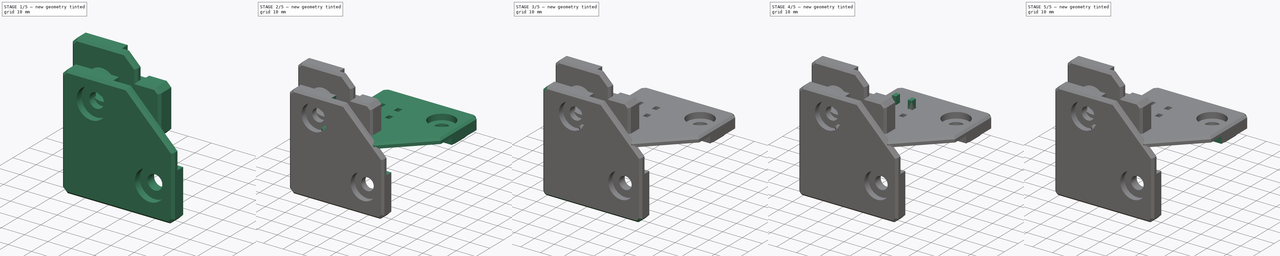
[diagram: build sequence overview — one tinted view per stage of 5, left to right]
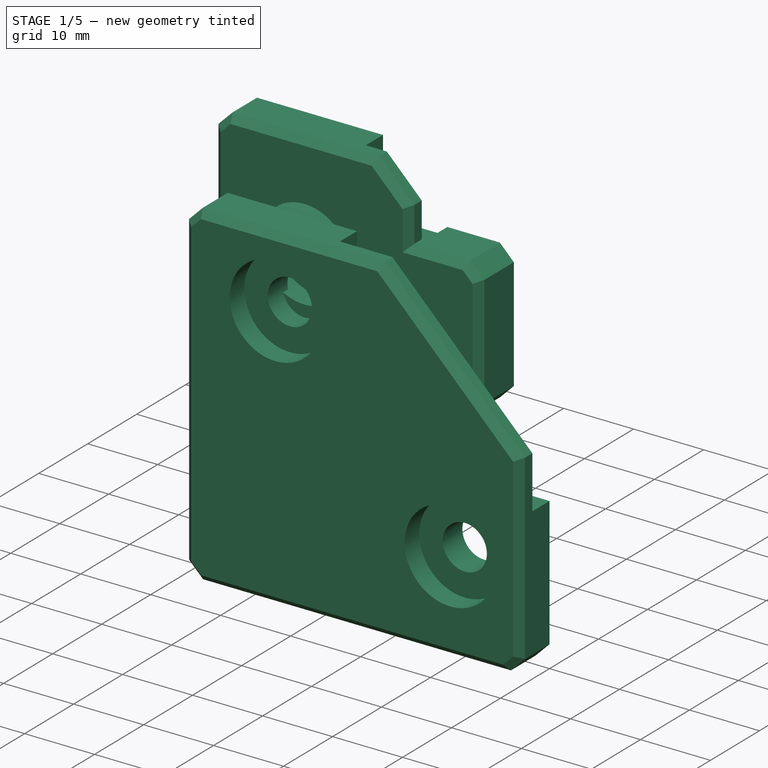
[diagram: stage 1 of 5 — iso view after this stage's code; geometry added in this stage tinted green]
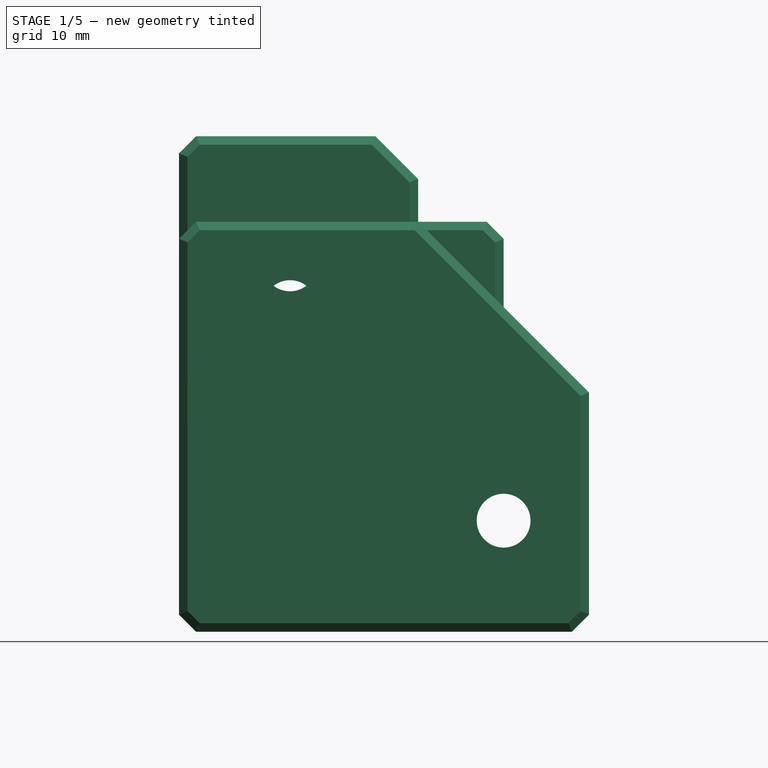
[diagram: stage 1 of 5 — front view after this stage's code; geometry added in this stage tinted green]
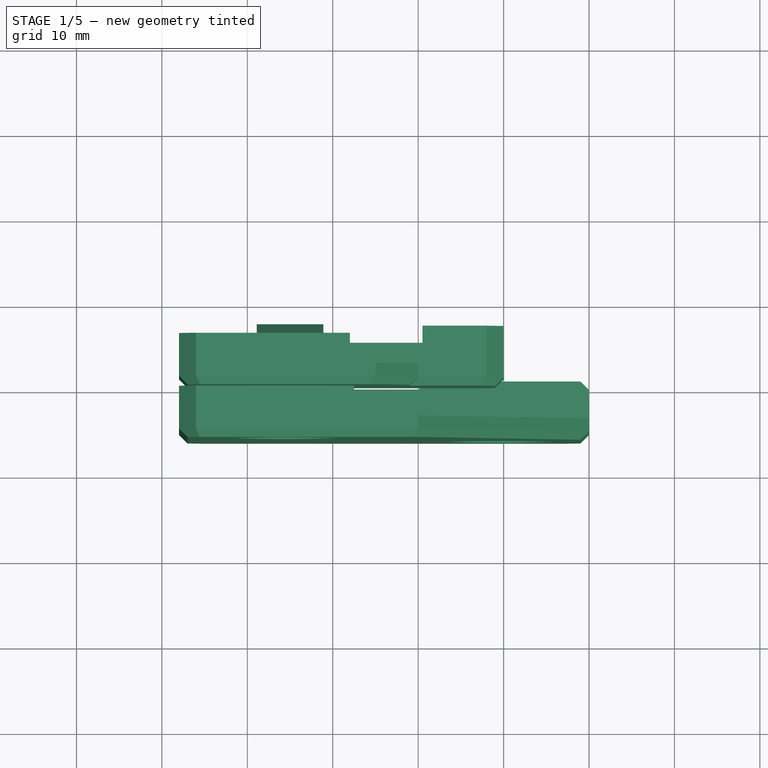
[diagram: stage 1 of 5 — top view after this stage's code; geometry added in this stage tinted green]
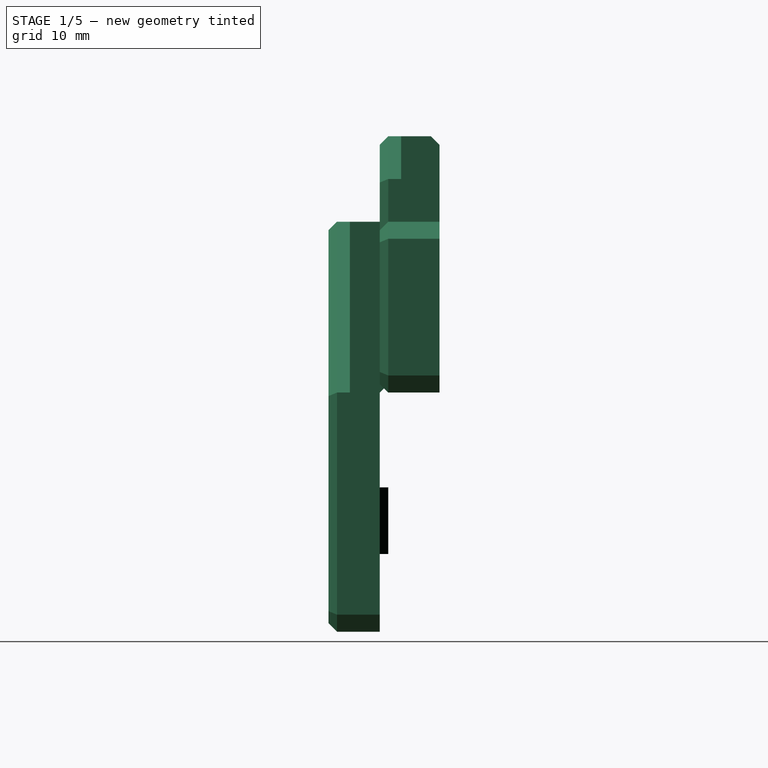
[diagram: stage 1 of 5 — right view after this stage's code; geometry added in this stage tinted green]
FCSTD DOCUMENT  (FreeCAD 0.19R24291 (Git))
Label: panel-mount-wider
License: Other
LicenseURL: GPL3
objects: Sketcher::SketchObject×8, PartDesign::Pocket×8, Part::Feature×6, Part::Box×6, Part::Chamfer×5, PartDesign::FeatureBase×5, PartDesign::Body×5, Part::MultiFuse×3, Part::Cut×1
note: 55 computed .brp shape members not serialized (recipe doc carries the construction recipe); baked Part::Feature solids carry a one-line shape summary decoded from their .brp

FEATURE [Part::Feature] Cut002008006005  label="back-corner-narrow"
  Placement = pos=(-155,57.5,1.1e-14) rot=(0.57735,-0.57735,0.57735;4.18879rad)
  shape: bbox 48 x 48 x 7 mm, 37 faces (baked)
FEATURE [PartDesign::FeatureBase] BaseFeature001
  BaseFeature = -> Cut002008006005
FEATURE [Part::Feature] Cut008004003004014002002005003004003002003001003001002001002002003026  label="side-clip-narrow"
  Placement = pos=(145,-3,395) rot=(0,1,0;1.5708rad)
  shape: bbox 30 x 7 x 28 mm, 29 faces (baked)
FEATURE [PartDesign::FeatureBase] BaseFeature002
  BaseFeature = -> Cut008004003004014002002005003004003002003001003001002001002002003026
FEATURE [Sketcher::SketchObject] Sketch002
  FullyConstrained = false
  MapMode = 5
  Placement = pos=(0,6,0) rot=(0,0.707107,0.707107;3.14159rad)
  Support = -> [BaseFeature002]
  sketch-geometry (4):
    g0: LineSegment StartX=8 StartY=30.5 StartZ=0 EndX=-0.5 EndY=30.5 EndZ=0
    g1: LineSegment StartX=-0.5 StartY=30.5 StartZ=0 EndX=-0.5 EndY=-0.5 EndZ=0
    g2: LineSegment StartX=-0.5 StartY=-0.5 StartZ=0 EndX=8 EndY=-0.5 EndZ=0
    g3: LineSegment StartX=8 StartY=-0.5 StartZ=0 EndX=8 EndY=30.5 EndZ=0
  constraints (8):
    c: Coincident(g0,g1)
    c: Coincident(g1,g2)
    c: Coincident(g2,g3)
    c: Coincident(g3,g0)
    c: Horizontal(g0)
    c: Horizontal(g2)
    c: Vertical(g1)
    c: Vertical(g3)
FEATURE [PartDesign::Pocket] Pocket002
  BaseFeature = -> BaseFeature002
  Length = 0
  Length2 = 100
  Profile = -> Sketch002
  Type = 3
  UpToFace = -> BaseFeature002 [Face11]
FEATURE [PartDesign::Body] Body001  label="back-corner-common"
  BaseFeature = -> Cut002008006005
  Group = -> [BaseFeature001,Sketch001,Pocket001,Sketch005,Pocket002001004]
  Origin = -> Origin001
  Tip = -> Pocket002001004
FEATURE [Sketcher::SketchObject] Sketch006
  FullyConstrained = true
  MapMode = 5
  Placement = pos=(0,7,0) rot=(0,0.707107,0.707107;3.14159rad)
  Support = -> [Pocket002]
  sketch-geometry (4):
    g0: LineSegment StartX=11 StartY=20 StartZ=0 EndX=19 EndY=20 EndZ=0
    g1: LineSegment StartX=19 StartY=20 StartZ=0 EndX=19 EndY=10 EndZ=0
    g2: LineSegment StartX=19 StartY=10 StartZ=0 EndX=11 EndY=10 EndZ=0
    g3: LineSegment StartX=11 StartY=10 StartZ=0 EndX=11 EndY=20 EndZ=0
  constraints (12):
    c: Coincident(g0,g1)
    c: Coincident(g1,g2)
    c: Coincident(g2,g3)
    c: Coincident(g3,g0)
    c: Horizontal(g0)
    c: Horizontal(g2)
    c: Vertical(g1)
    c: Vertical(g3)
    c: DistanceX(g0,g0) = 8
    c: DistanceY(g3,g3) = 10
    c: DistanceY(g-1,g2) = 10
    c: DistanceX(g-1,g2) = 11
FEATURE [PartDesign::Pocket] Pocket002001005
  BaseFeature = -> Pocket002
  Length = 1
  Length2 = 100
  Profile = -> Sketch006
  Type = 0
FEATURE [PartDesign::Body] Body002  label="side-clip"
  BaseFeature = -> Cut008004003004014002002005003004003002003001003001002001002002003026
  Group = -> [BaseFeature002,Sketch002,Pocket002,Sketch006,Pocket002001005]
  Origin = -> Origin002
  Tip = -> Pocket002001005
FEATURE [Part::Feature] Cut008004003004014002002005003004003002003001003001006  label="inner-clip-origin"
  Placement = pos=(10,15,7) rot=(0.57735,0.57735,-0.57735;4.18879rad)
  shape: bbox 20 x 35 x 7 mm, 27 faces (baked)
FEATURE [PartDesign::FeatureBase] BaseFeature004
  BaseFeature = -> Cut008004003004014002002005003004003002003001003001006
FEATURE [Sketcher::SketchObject] Sketch007
  FullyConstrained = true
  MapMode = 5
  Placement = pos=(0,6,0) rot=(0,0.707107,0.707107;3.14159rad)
  Support = -> [BaseFeature004]
  sketch-geometry (4):
    g0: LineSegment StartX=10.08 StartY=15 StartZ=0 EndX=20.08 EndY=15 EndZ=0
    g1: LineSegment StartX=20.08 StartY=15 StartZ=0 EndX=20.08 EndY=5 EndZ=0
    g2: LineSegment StartX=20.08 StartY=5 StartZ=0 EndX=10.08 EndY=5 EndZ=0
    g3: LineSegment StartX=10.08 StartY=5 StartZ=0 EndX=10.08 EndY=15 EndZ=0
  constraints (12):
    c: Coincident(g0,g1)
    c: Coincident(g1,g2)
    c: Coincident(g2,g3)
    c: Coincident(g3,g0)
    c: Horizontal(g0)
    c: Horizontal(g2)
    c: Vertical(g1)
    c: Vertical(g3)
    c: DistanceY(g1,g1) = 10
    c: DistanceX(g0,g0) = 10
    c: DistanceX(g-1,g2) = 10.08
    c: DistanceY(g-1,g2) = 5
FEATURE [PartDesign::Pocket] Pocket002001006
  BaseFeature = -> BaseFeature004
  Length = 1
  Length2 = 100
  Profile = -> Sketch007
  Type = 0
FEATURE [PartDesign::Body] Body004  label="inner-clip"
  BaseFeature = -> Cut008004003004014002002005003004003002003001003001006
  Group = -> [BaseFeature004,Sketch007,Pocket002001006]
  Origin = -> Origin004
  Tip = -> Pocket002001006
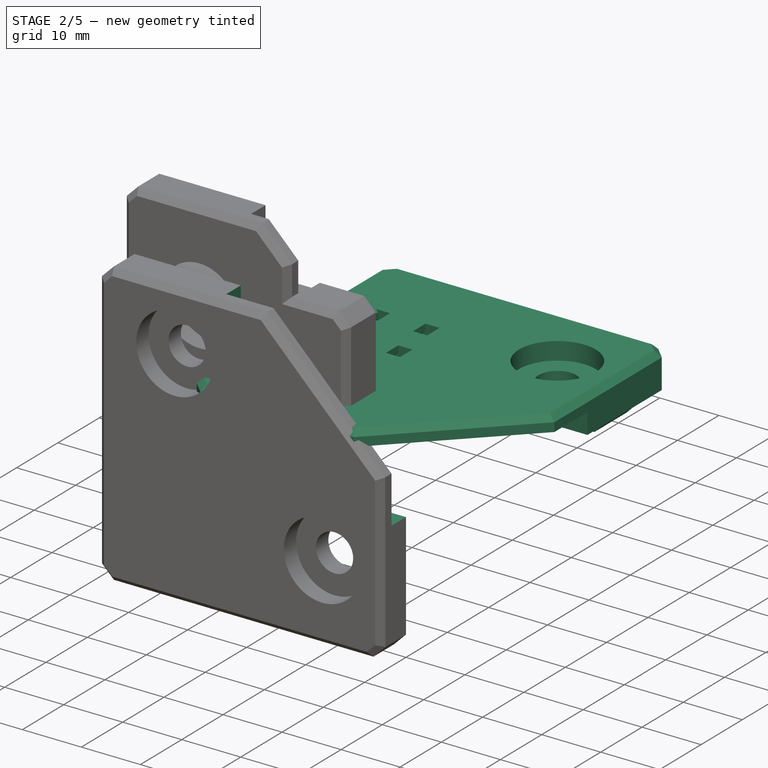
[diagram: stage 2 of 5 — iso view after this stage's code; geometry added in this stage tinted green]
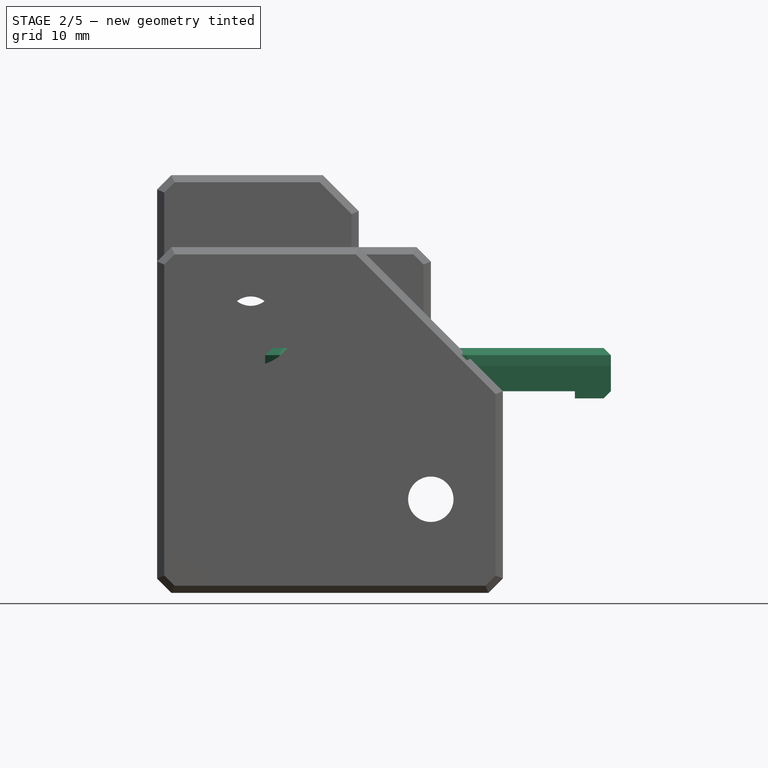
[diagram: stage 2 of 5 — front view after this stage's code; geometry added in this stage tinted green]
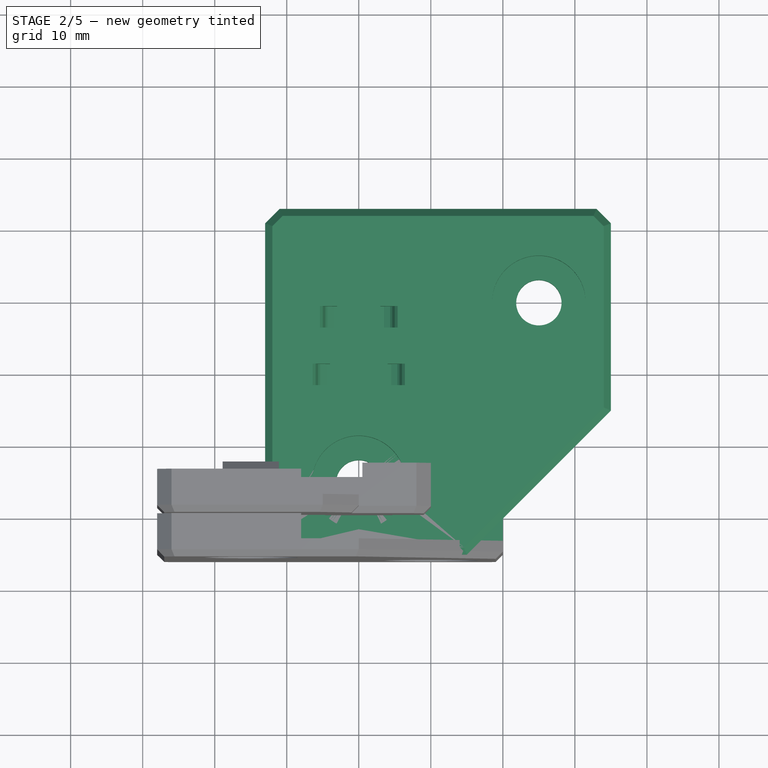
[diagram: stage 2 of 5 — top view after this stage's code; geometry added in this stage tinted green]
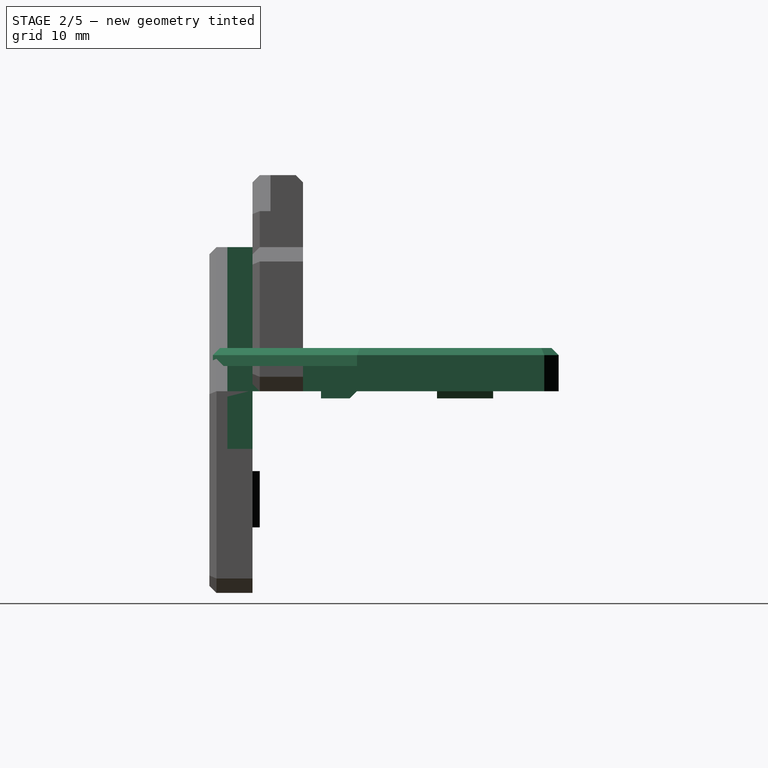
[diagram: stage 2 of 5 — right view after this stage's code; geometry added in this stage tinted green]
FEATURE [Part::Feature] Chamfer004001  label="corner-wire-mounter-narrow"
  shape: bbox 48 x 48 x 7 mm, 85 faces (baked)
FEATURE [PartDesign::FeatureBase] BaseFeature
  BaseFeature = -> Chamfer004001
FEATURE [Sketcher::SketchObject] Sketch
  FullyConstrained = false
  MapMode = 5
  Placement = pos=(0,0,1.07e-14) rot=(1,0,0;3.14159rad)
  Support = -> [BaseFeature]
  sketch-geometry (4):
    g0: LineSegment StartX=7 StartY=-22.5 StartZ=0 EndX=40.1708 EndY=-22.5 EndZ=0
    g1: LineSegment StartX=40.1708 StartY=-22.5 StartZ=0 EndX=40.1708 EndY=11.2568 EndZ=0
    g2: LineSegment StartX=40.1708 StartY=11.2568 StartZ=0 EndX=7 EndY=11.2568 EndZ=0
    g3: LineSegment StartX=7 StartY=11.2568 StartZ=0 EndX=7 EndY=-22.5 EndZ=0
  constraints (8):
    c: Coincident(g0,g1)
    c: Coincident(g1,g2)
    c: Coincident(g2,g3)
    c: Coincident(g3,g0)
    c: Horizontal(g0)
    c: Horizontal(g2)
    c: Vertical(g1)
    c: Vertical(g3)
FEATURE [PartDesign::Pocket] Pocket
  BaseFeature = -> BaseFeature
  Length = 0
  Length2 = 100
  Profile = -> Sketch
  Type = 3
  UpToFace = -> BaseFeature [Face71]
FEATURE [Sketcher::SketchObject] Sketch001
  FullyConstrained = false
  MapMode = 5
  Placement = pos=(0,0,0) rot=(0,0.707107,0.707107;3.14159rad)
  Support = -> [BaseFeature001]
  sketch-geometry (4):
    g0: LineSegment StartX=8 StartY=-8 StartZ=0 EndX=-26.2306 EndY=-8 EndZ=0
    g1: LineSegment StartX=-26.2306 StartY=-8 StartZ=0 EndX=-26.2306 EndY=25.143 EndZ=0
    g2: LineSegment StartX=-26.2306 StartY=25.143 StartZ=0 EndX=8 EndY=25.143 EndZ=0
    g3: LineSegment StartX=8 StartY=25.143 StartZ=0 EndX=8 EndY=-8 EndZ=0
  constraints (8):
    c: Coincident(g0,g1)
    c: Coincident(g1,g2)
    c: Coincident(g2,g3)
    c: Coincident(g3,g0)
    c: Horizontal(g0)
    c: Horizontal(g2)
    c: Vertical(g1)
    c: Vertical(g3)
FEATURE [PartDesign::Pocket] Pocket001
  BaseFeature = -> BaseFeature001
  Length = 0
  Length2 = 100
  Profile = -> Sketch001
  Type = 3
  UpToFace = -> BaseFeature001 [Face4]
FEATURE [PartDesign::Body] Body003  label="top-corner"
  BaseFeature = -> Cut002008004005
  Group = -> [BaseFeature003,Sketch003,Pocket002001002]
  Origin = -> Origin003
  Tip = -> Pocket002001002
FEATURE [Sketcher::SketchObject] Sketch004
  FullyConstrained = true
  MapMode = 5
  Placement = pos=(0,0,-1) rot=(1,0,0;3.14159rad)
  Support = -> [Pocket]
  sketch-geometry (8):
    g0: LineSegment StartX=-4 StartY=0.5 StartZ=0 EndX=4 EndY=0.5 EndZ=0
    g1: LineSegment StartX=4 StartY=0.5 StartZ=0 EndX=4 EndY=-9.5 EndZ=0
    g2: LineSegment StartX=4 StartY=-9.5 StartZ=0 EndX=-4 EndY=-9.5 EndZ=0
    g3: LineSegment StartX=-4 StartY=-9.5 StartZ=0 EndX=-4 EndY=0.5 EndZ=0
    g4: LineSegment StartX=20 StartY=-25.5 StartZ=0 EndX=30 EndY=-25.5 EndZ=0
    g5: LineSegment StartX=30 StartY=-25.5 StartZ=0 EndX=30 EndY=-33.5 EndZ=0
    g6: LineSegment StartX=30 StartY=-33.5 StartZ=0 EndX=20 EndY=-33.5 EndZ=0
    g7: LineSegment StartX=20 StartY=-33.5 StartZ=0 EndX=20 EndY=-25.5 EndZ=0
  constraints (24):
    c: Coincident(g0,g1)
    c: Coincident(g1,g2)
    c: Coincident(g2,g3)
    c: Coincident(g3,g0)
    c: Horizontal(g0)
    c: Horizontal(g2)
    c: Vertical(g1)
    c: Vertical(g3)
    c: DistanceY(g1,g1) = 10
    c: DistanceX(g2,g2) = 8
    c: Coincident(g4,g5)
    c: Coincident(g5,g6)
    c: Coincident(g6,g7)
    c: Coincident(g7,g4)
    c: Horizontal(g4)
    c: Horizontal(g6)
    c: Vertical(g5)
    c: Vertical(g7)
    c: DistanceY(g7,g7) = 8
    c: DistanceX(g4,g4) = 10
    c: DistanceX(g-1,g4) = 20
    c: DistanceY(g4,g-1) = 25.5
    c: DistanceX(g0,g-1) = 4
    c: DistanceY(g-1,g0) = 0.5
FEATURE [PartDesign::Pocket] Pocket002001003
  BaseFeature = -> Pocket
  Length = 1
  Length2 = 100
  Profile = -> Sketch004
  Type = 0
FEATURE [PartDesign::Body] Body  label="corner-wire-mounter"
  BaseFeature = -> Chamfer004001
  Group = -> [BaseFeature,Sketch,Pocket,Sketch004,Pocket002001003]
  Origin = -> Origin
  Tip = -> Pocket002001003
FEATURE [Sketcher::SketchObject] Sketch005
  FullyConstrained = true
  MapMode = 5
  Placement = pos=(0,1,0) rot=(0,0.707107,0.707107;3.14159rad)
  Support = -> [Pocket001]
  sketch-geometry (8):
    g0: LineSegment StartX=-15 StartY=-11 StartZ=0 EndX=-5 EndY=-11 EndZ=0
    g1: LineSegment StartX=-5 StartY=-11 StartZ=0 EndX=-5 EndY=-19 EndZ=0
    g2: LineSegment StartX=-5 StartY=-19 StartZ=0 EndX=-15 EndY=-19 EndZ=0
    g3: LineSegment StartX=-15 StartY=-19 StartZ=0 EndX=-15 EndY=-11 EndZ=0
    g4: LineSegment StartX=11 StartY=15 StartZ=0 EndX=19 EndY=15 EndZ=0
    g5: LineSegment StartX=19 StartY=15 StartZ=0 EndX=19 EndY=5 EndZ=0
    g6: LineSegment StartX=19 StartY=5 StartZ=0 EndX=11 EndY=5 EndZ=0
    g7: LineSegment StartX=11 StartY=5 StartZ=0 EndX=11 EndY=15 EndZ=0
  constraints (24):
    c: Coincident(g0,g1)
    c: Coincident(g1,g2)
    c: Coincident(g2,g3)
    c: Coincident(g3,g0)
    c: Horizontal(g0)
    c: Horizontal(g2)
    c: Vertical(g1)
    c: Vertical(g3)
    c: DistanceX(g0,g0) = 10
    c: DistanceY(g1,g1) = 8
    c: Coincident(g4,g5)
    c: Coincident(g5,g6)
    c: Coincident(g6,g7)
    c: Coincident(g7,g4)
    c: Horizontal(g4)
    c: Horizontal(g6)
    c: Vertical(g5)
    c: Vertical(g7)
    c: DistanceX(g4,g4) = 8
    c: DistanceY(g7,g7) = 10
    c: DistanceY(g0,g-1) = 11
    c: DistanceX(g0,g-1) = 5
    c: DistanceX(g-1,g6) = 11
    c: DistanceY(g-1,g6) = 5
FEATURE [PartDesign::Pocket] Pocket002001004
  BaseFeature = -> Pocket001
  Length = 1
  Length2 = 100
  Profile = -> Sketch005
  Type = 0
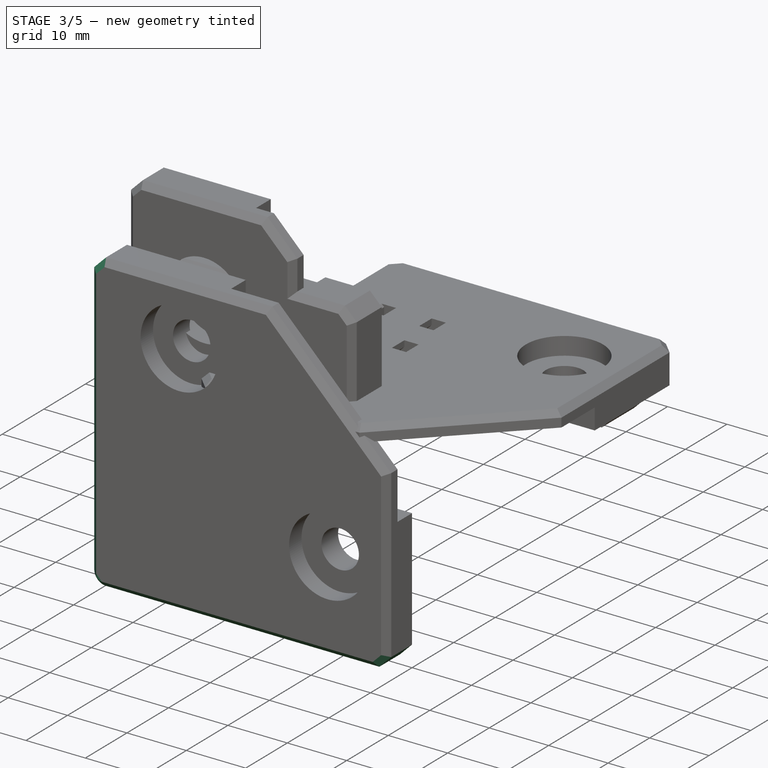
[diagram: stage 3 of 5 — iso view after this stage's code; geometry added in this stage tinted green]
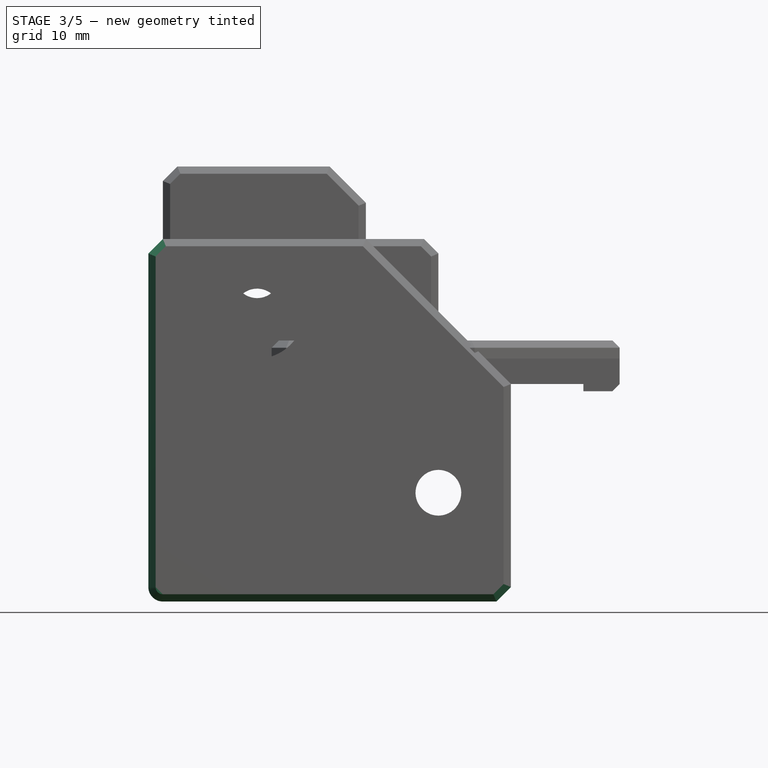
[diagram: stage 3 of 5 — front view after this stage's code; geometry added in this stage tinted green]
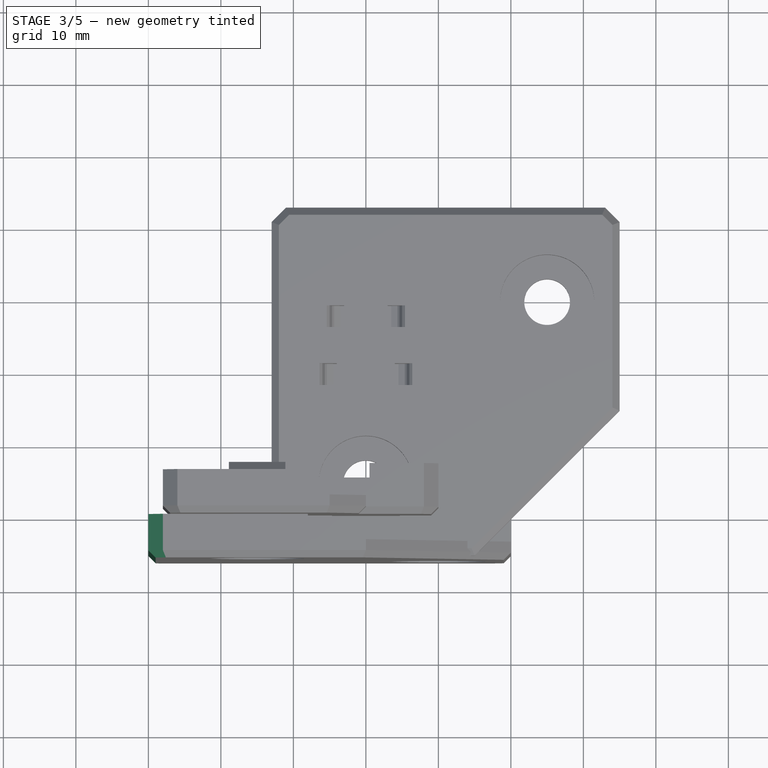
[diagram: stage 3 of 5 — top view after this stage's code; geometry added in this stage tinted green]
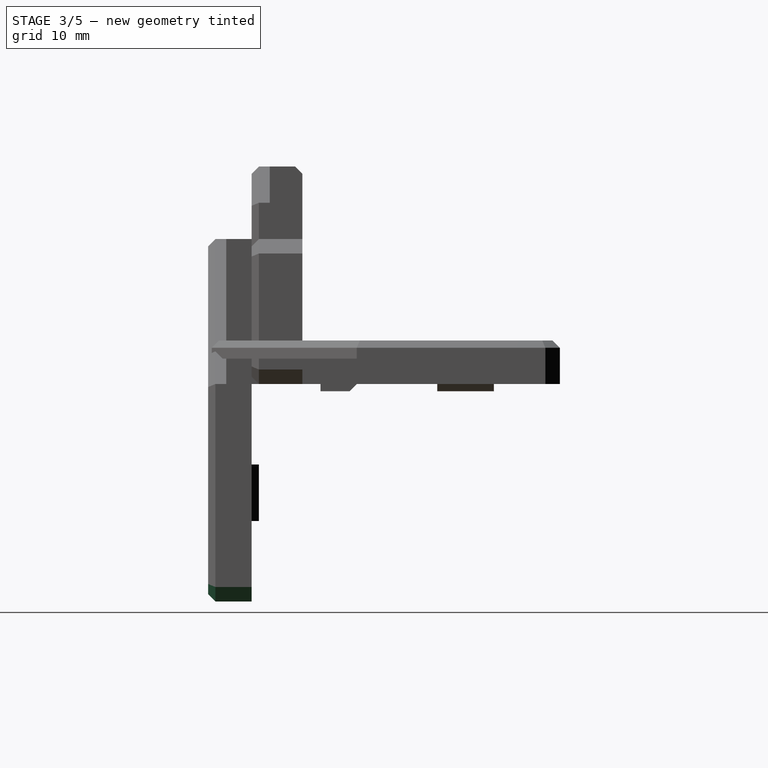
[diagram: stage 3 of 5 — right view after this stage's code; geometry added in this stage tinted green]
FEATURE [Part::Feature] Cut002008006004  label="side-corner-panel-clip004"
  Placement = pos=(15,14.5,1.1e-14) rot=(0.57735,-0.57735,0.57735;4.18879rad)
  shape: bbox 48 x 48 x 7 mm, 37 faces (baked)
FEATURE [Part::Box] Box  label="Cube"
  AttacherType = Attacher::AttachEngine3D
  Height = 2
  Length = 6
  Placement = pos=(-3,0,0) rot=(0,0,1;0rad)
  Width = 3
FEATURE [Part::Box] Box001  label="Cube001"
  AttacherType = Attacher::AttachEngine3D
  Height = 8
  Length = 2
  Placement = pos=(-5,0,0) rot=(0,0,1;0rad)
  Width = 3
FEATURE [Part::Box] Box002  label="Cube002"
  AttacherType = Attacher::AttachEngine3D
  Height = 8
  Length = 2
  Placement = pos=(3,0,0) rot=(0,0,1;0rad)
  Width = 3
FEATURE [Part::MultiFuse] Fusion001
  Shapes = -> [Box002,Box,Box001]
FEATURE [Part::Feature] Cut002008004005  label="top-corner-narrow"
  Placement = pos=(-155,155,1.03e-13) rot=(0.57735,-0.57735,0.57735;4.18879rad)
  shape: bbox 50 x 50 x 7 mm, 37 faces (baked)
FEATURE [PartDesign::FeatureBase] BaseFeature003
  BaseFeature = -> Cut002008004005
FEATURE [Sketcher::SketchObject] Sketch003
  FullyConstrained = false
  MapMode = 5
  Placement = pos=(0,0,0) rot=(0,0.707107,0.707107;3.14159rad)
  Support = -> [BaseFeature003]
  sketch-geometry (4):
    g0: LineSegment StartX=8 StartY=-8 StartZ=0 EndX=-20 EndY=-8 EndZ=0
    g1: LineSegment StartX=-20 StartY=-8 StartZ=0 EndX=-20 EndY=20 EndZ=0
    g2: LineSegment StartX=-20 StartY=20 StartZ=0 EndX=8 EndY=20 EndZ=0
    g3: LineSegment StartX=8 StartY=20 StartZ=0 EndX=8 EndY=-8 EndZ=0
  constraints (8):
    c: Coincident(g0,g1)
    c: Coincident(g1,g2)
    c: Coincident(g2,g3)
    c: Coincident(g3,g0)
    c: Horizontal(g0)
    c: Horizontal(g2)
    c: Vertical(g1)
    c: Vertical(g3)
FEATURE [PartDesign::Pocket] Pocket002001002
  BaseFeature = -> BaseFeature003
  Length = 3.5
  Length2 = 100
  Profile = -> Sketch003
  Type = 0
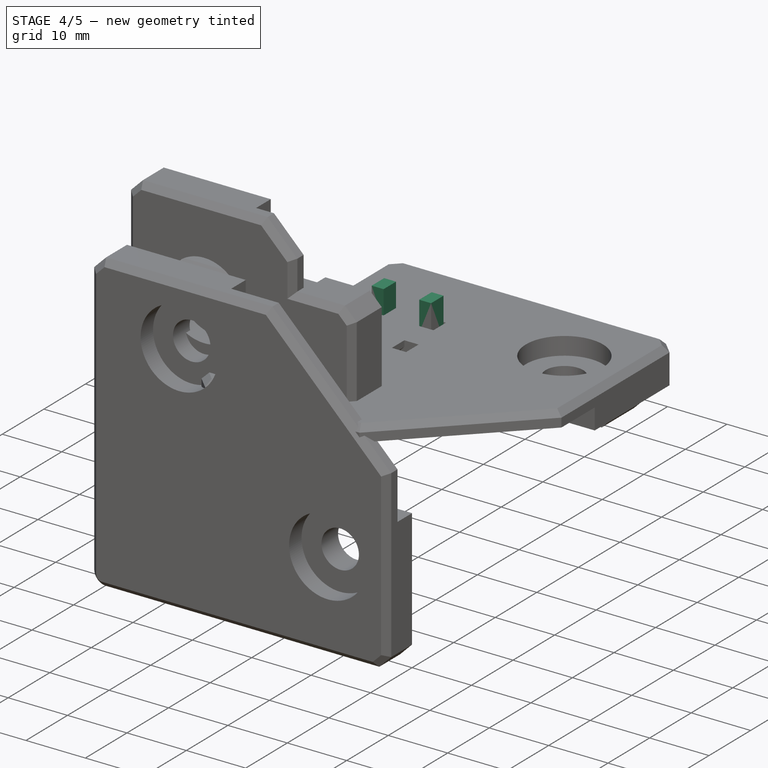
[diagram: stage 4 of 5 — iso view after this stage's code; geometry added in this stage tinted green]
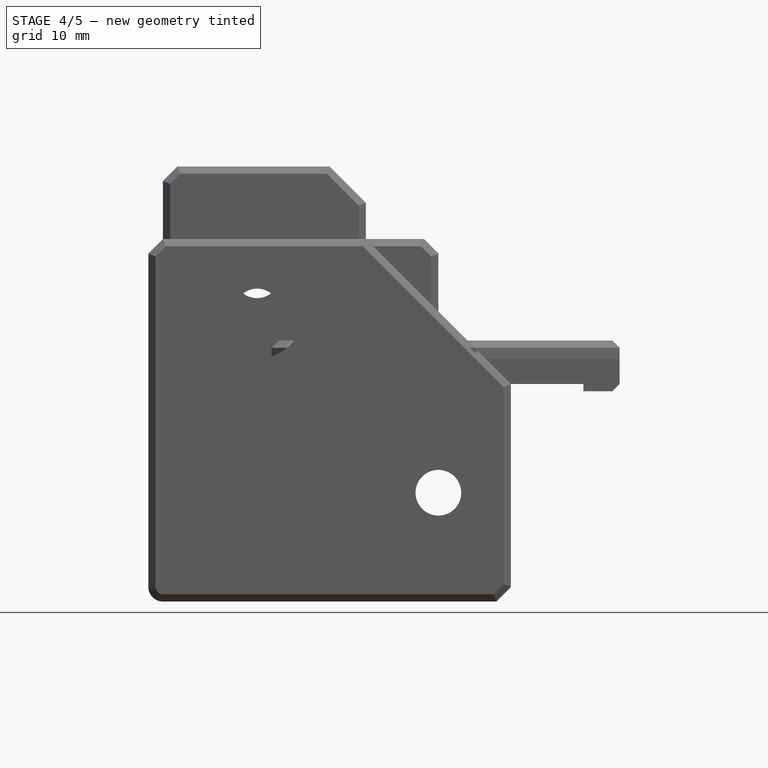
[diagram: stage 4 of 5 — front view after this stage's code; geometry added in this stage tinted green]
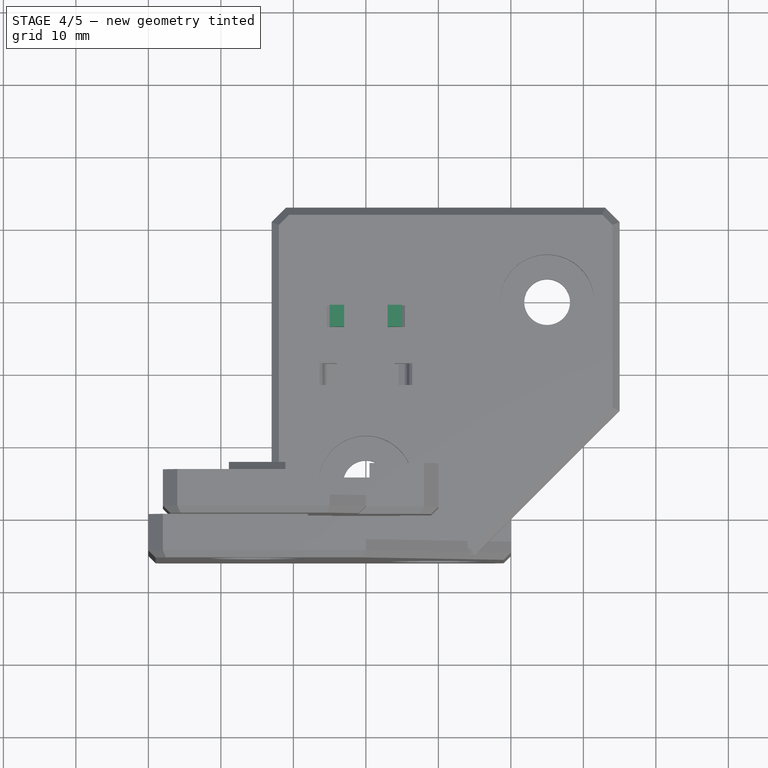
[diagram: stage 4 of 5 — top view after this stage's code; geometry added in this stage tinted green]
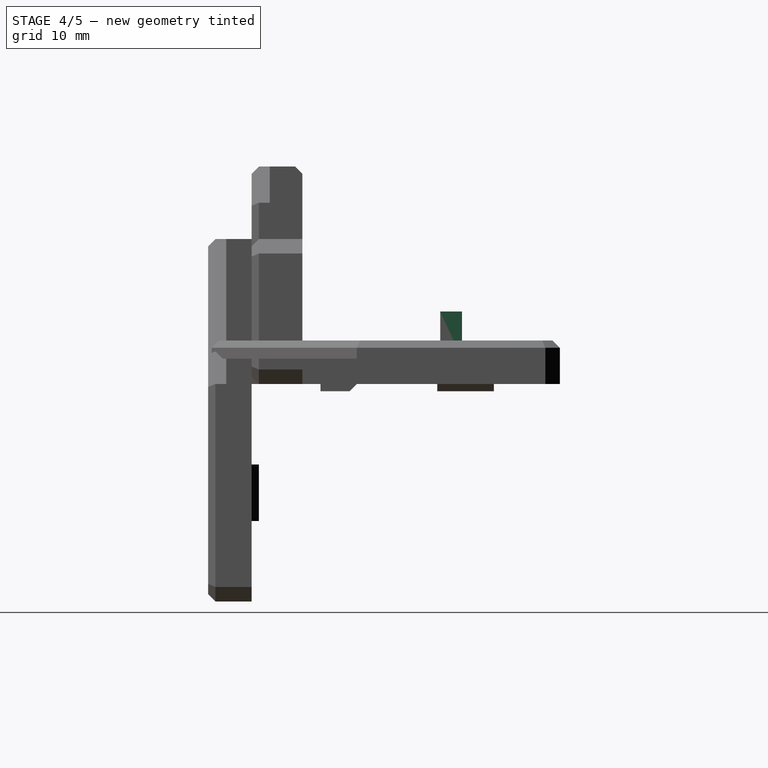
[diagram: stage 4 of 5 — right view after this stage's code; geometry added in this stage tinted green]
FEATURE [Part::Box] Box003  label="Cube003"
  AttacherType = Attacher::AttachEngine3D
  Height = 8
  Length = 2
  Placement = pos=(4,0,0) rot=(0,0,1;0rad)
  Width = 3
FEATURE [Part::Box] Box004  label="Cube004"
  AttacherType = Attacher::AttachEngine3D
  Height = 8
  Length = 2
  Placement = pos=(-6,0,0) rot=(0,0,1;0rad)
  Width = 3
FEATURE [Part::Box] Box005  label="Cube005"
  AttacherType = Attacher::AttachEngine3D
  Height = 2
  Length = 8
  Placement = pos=(-4,0,0) rot=(0,0,1;0rad)
  Width = 3
FEATURE [Part::Chamfer] Chamfer002
  Base = -> Fusion001
  Edges = 4 edges r=1: [Edge4,Edge14,Edge18,Edge34]
FEATURE [Part::Chamfer] Chamfer003
  Base = -> Chamfer002
  Edges = 4 edges r=0.5: [Edge22,Edge23,Edge47,Edge49]
  Placement = pos=(0,26,2) rot=(0,0,1;0rad)
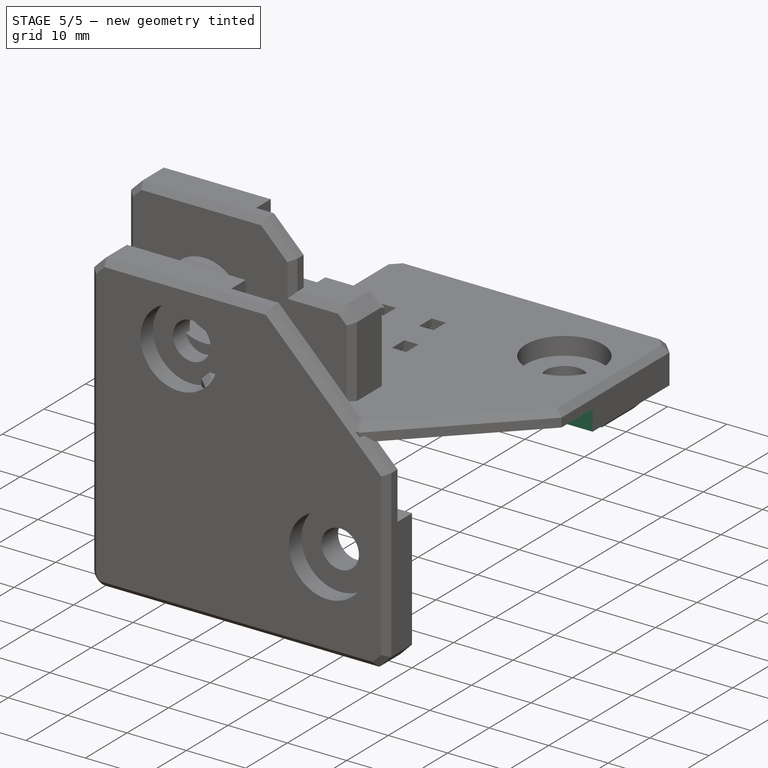
[diagram: stage 5 of 5 — iso view after this stage's code; geometry added in this stage tinted green]
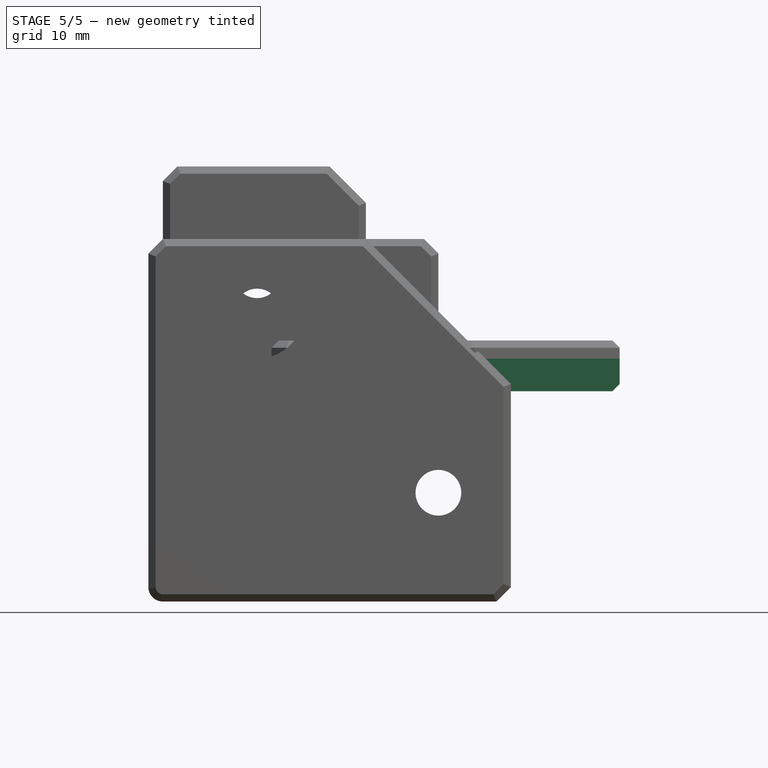
[diagram: stage 5 of 5 — front view after this stage's code; geometry added in this stage tinted green]
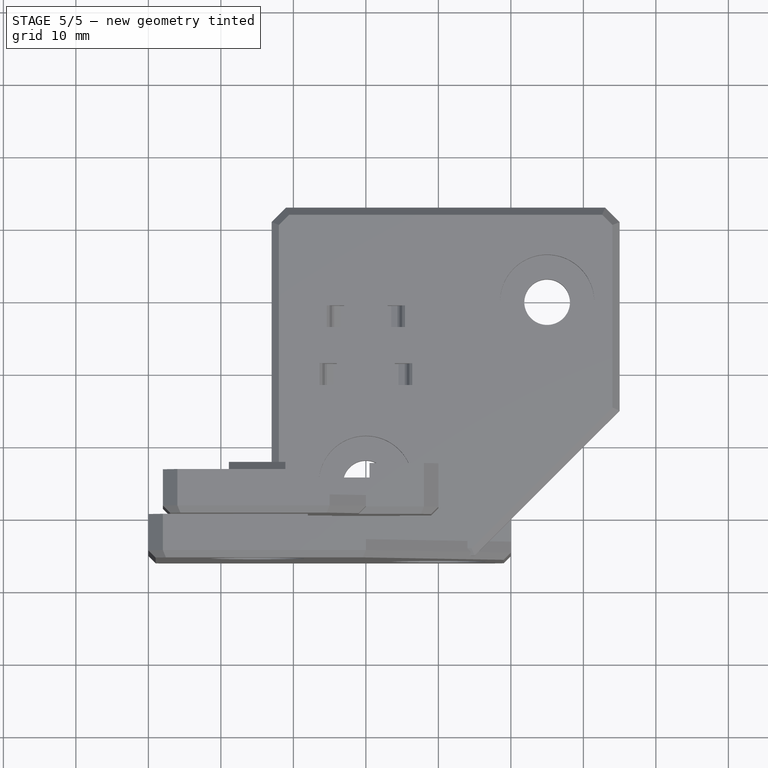
[diagram: stage 5 of 5 — top view after this stage's code; geometry added in this stage tinted green]
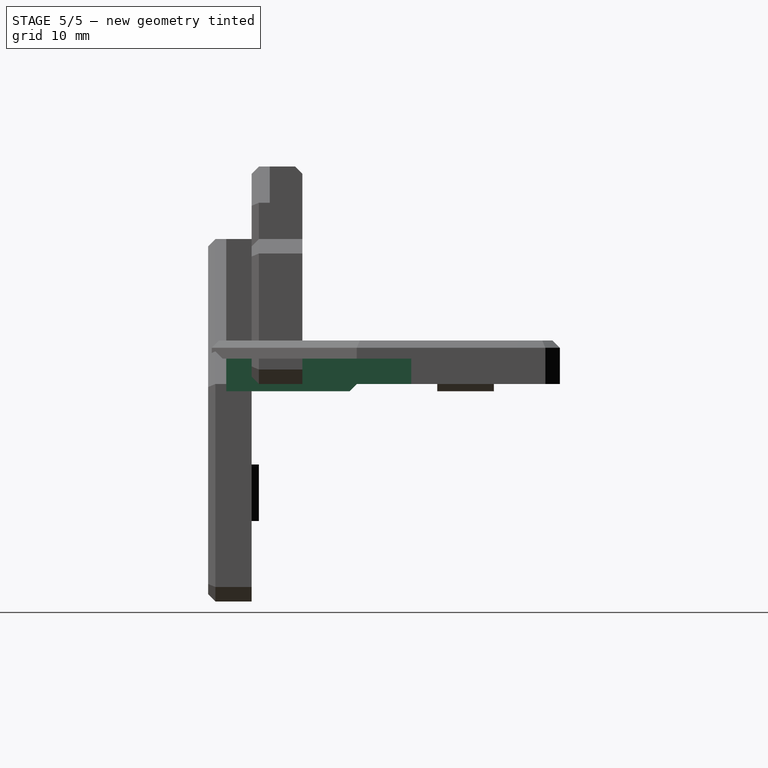
[diagram: stage 5 of 5 — right view after this stage's code; geometry added in this stage tinted green]
FEATURE [Part::MultiFuse] Fusion
  Shapes = -> [Box004,Box005,Box003]
FEATURE [Part::Chamfer] Chamfer
  Base = -> Fusion
  Edges = 4 edges r=1: [Edge4,Edge18,Edge27,Edge32]
FEATURE [Part::Chamfer] Chamfer001
  Base = -> Chamfer
  Edges = 4 edges r=0.5: [Edge2,Edge12,Edge47,Edge49]
  Placement = pos=(0,18,2) rot=(0,0,1;0rad)
FEATURE [Part::MultiFuse] Fusion002
  Shapes = -> [Chamfer001,Chamfer003]
FEATURE [Part::Cut] Cut
  Base = -> Cut002008006004
  Tool = -> Fusion002
FEATURE [Part::Chamfer] Chamfer004
  Base = -> Cut
  Edges = 4 edges r=0.4: [Edge21,Edge27,Edge32,Edge35]
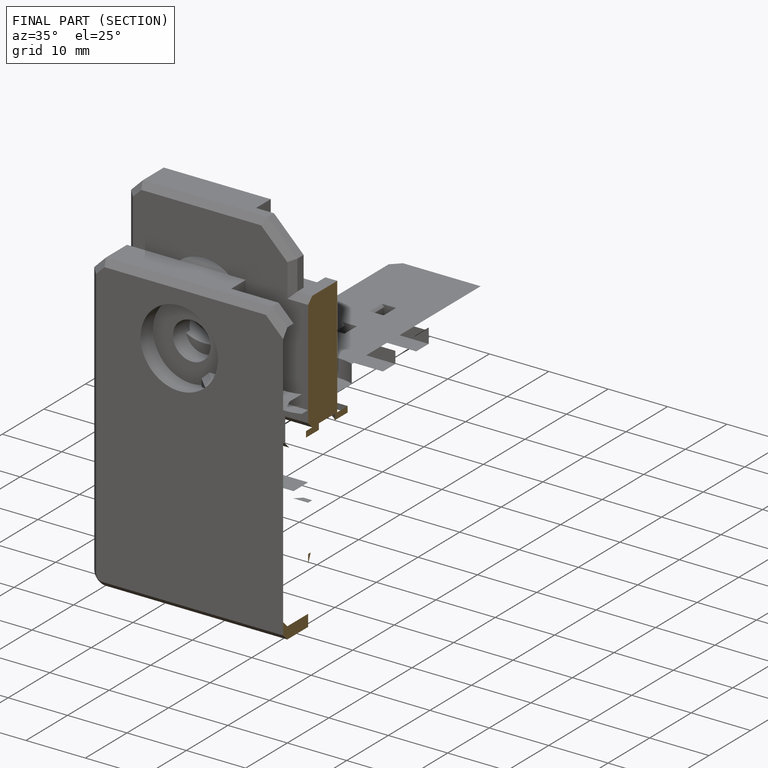
[diagram: finished part — half-section view (interior)]
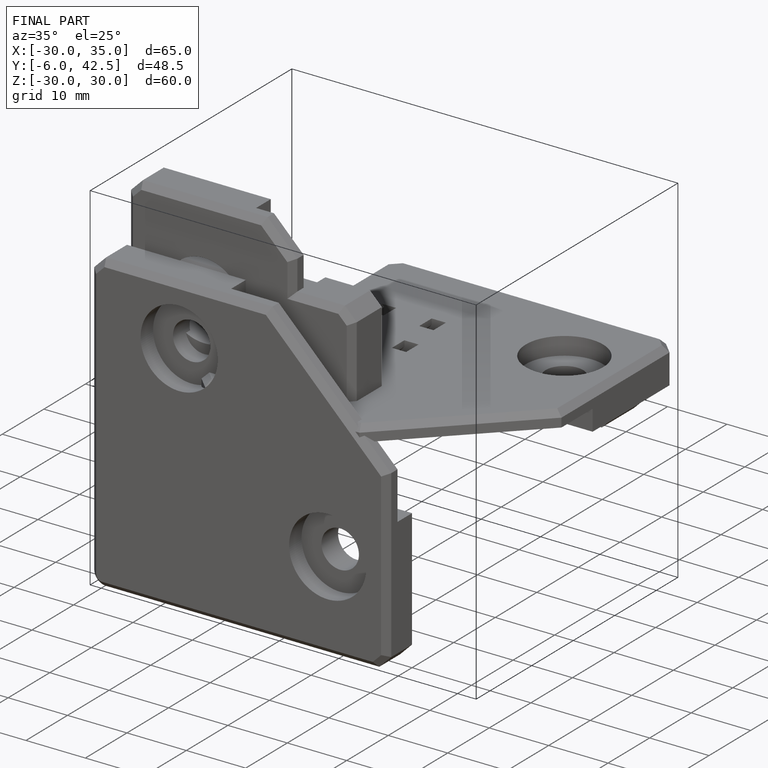
[diagram: finished part — iso view with bounding-box wireframe]
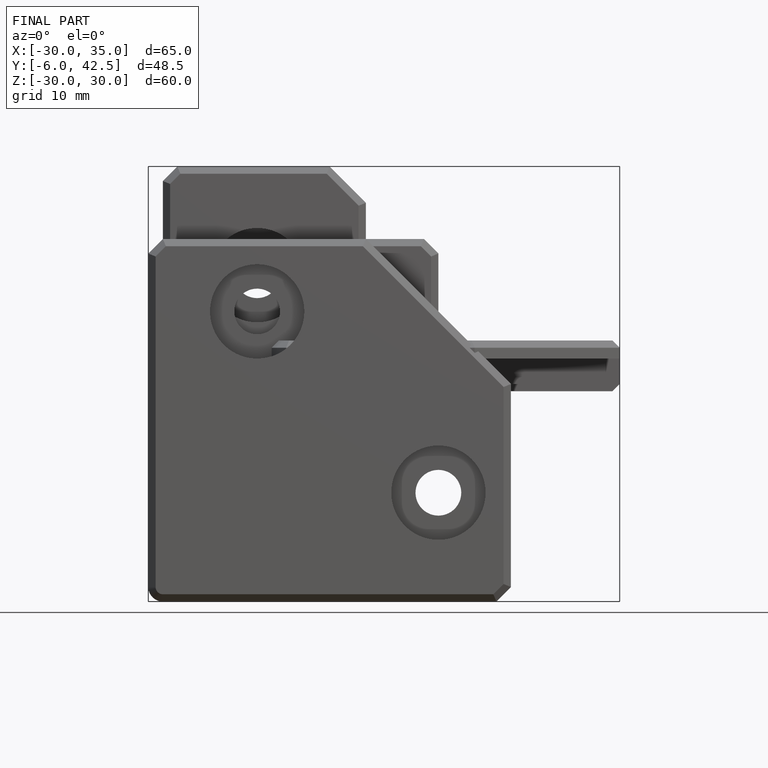
[diagram: finished part — front view with bounding-box wireframe]
